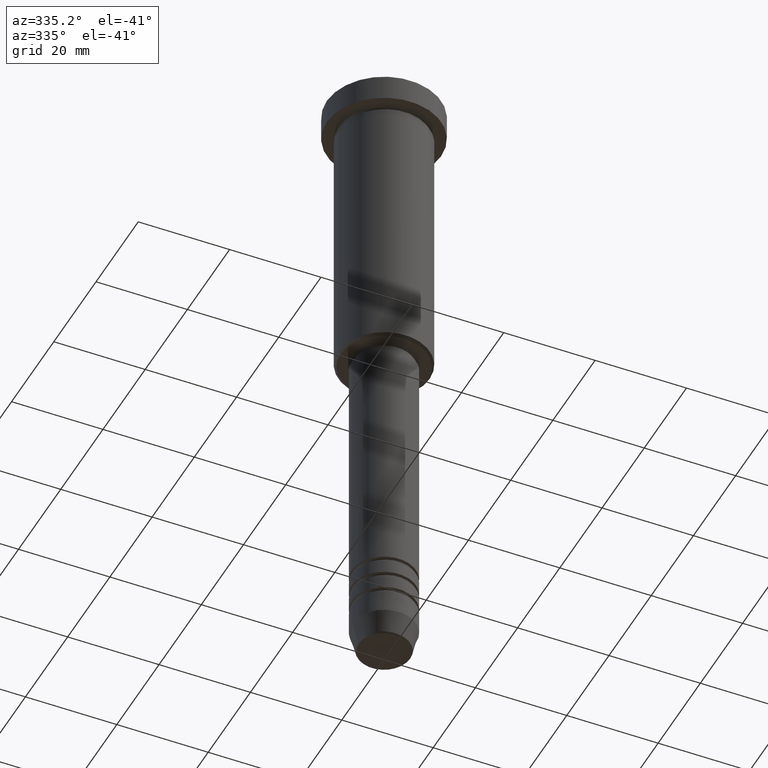
[diagram: clean part render]
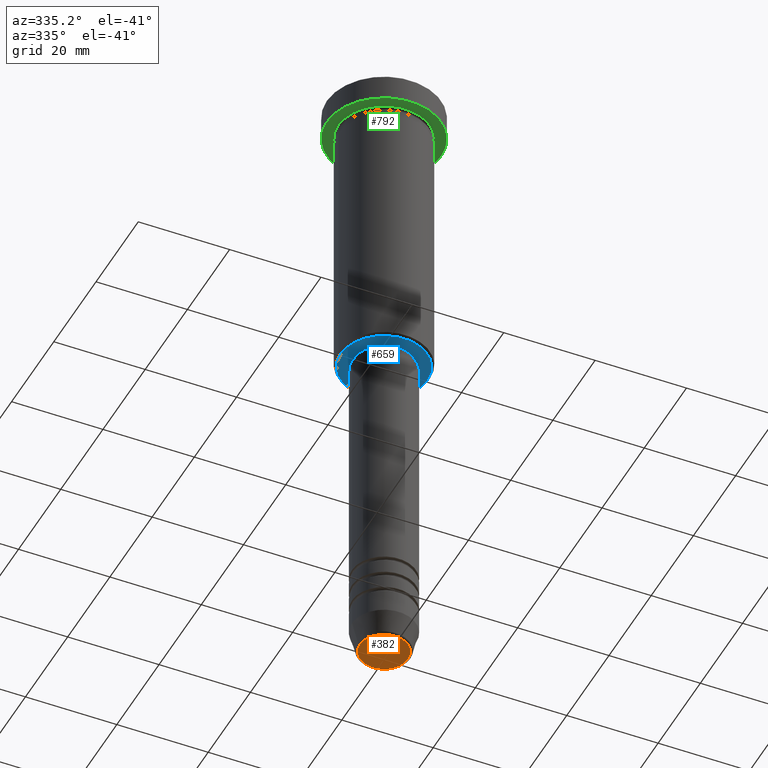
[diagram: same view with three faces highlighted in distinct colors, each labeled with its STEP entity id]
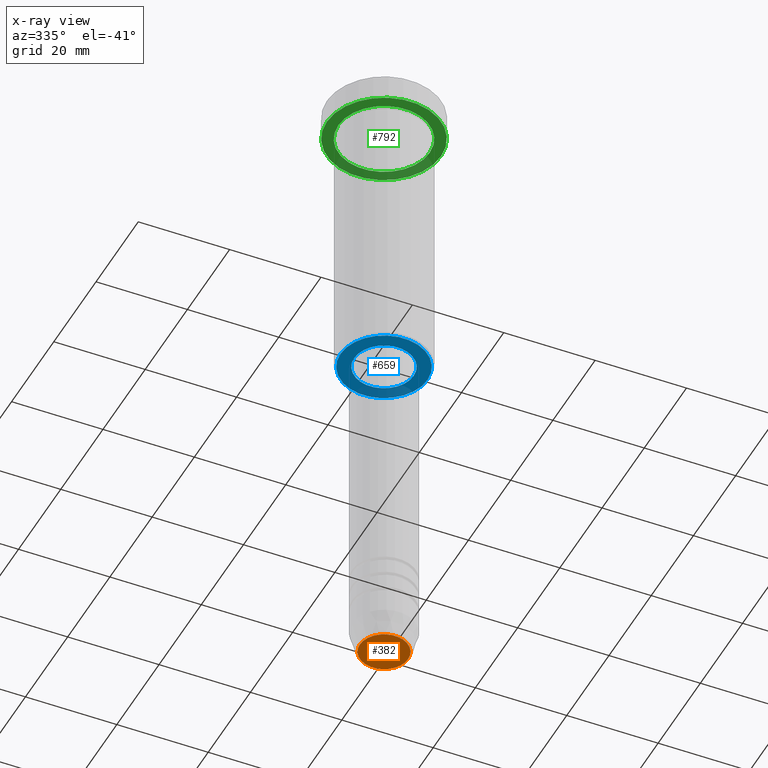
[diagram: x-ray of the same camera — body ghosted, the three highlighted faces saturated]
A machine part, auxiliary view with three faces highlighted in distinct colors.
The next image is the same camera in x-ray (body ghosted, the three faces saturated) — at least one of them is partly hidden behind the body in this view.
Their STEP definitions:

[orange] entity #382 — the highlighted planar face has unit normal (0, -0, 1).
#26 = CARTESIAN_POINT ( 'NONE',  ( 0.000000000000000000, 0.000000000000000000, -141.0000000000000000 ) ) ;
#117 = ORIENTED_EDGE ( 'NONE', *, *, #283, .T. ) ;
#178 = EDGE_CURVE ( 'NONE', #1104, #1133, #653, .T. ) ;
#229 = CARTESIAN_POINT ( 'NONE',  ( 0.000000000000000000, 0.000000000000000000, -141.0000000000000000 ) ) ;
#275 = CARTESIAN_POINT ( 'NONE',  ( 0.000000000000000000, 0.000000000000000000, -141.0000000000000000 ) ) ;
#283 = EDGE_CURVE ( 'NONE', #1133, #1104, #1097, .T. ) ;
#305 = FACE_OUTER_BOUND ( 'NONE', #907, .T. ) ;
#382 = ADVANCED_FACE ( 'NONE', ( #305 ), #947, .F. ) ;
#415 = CARTESIAN_POINT ( 'NONE',  ( -5.276590543854905668, 6.757689212787771832E-16, -141.0000000000000000 ) ) ;
#423 = AXIS2_PLACEMENT_3D ( 'NONE', #26, #490, #674 ) ;
#490 = DIRECTION ( 'NONE',  ( 0.000000000000000000, 0.000000000000000000, -1.000000000000000000 ) ) ;
#653 = CIRCLE ( 'NONE', #755, 5.276590543854905668 ) ;
#674 = DIRECTION ( 'NONE',  ( 1.000000000000000000, 0.000000000000000000, 0.000000000000000000 ) ) ;
#677 = ORIENTED_EDGE ( 'NONE', *, *, #178, .T. ) ;
#681 = DIRECTION ( 'NONE',  ( 1.000000000000000000, 0.000000000000000000, 0.000000000000000000 ) ) ;
#755 = AXIS2_PLACEMENT_3D ( 'NONE', #275, #1179, #1083 ) ;
#907 = EDGE_LOOP ( 'NONE', ( #677, #117 ) ) ;
#947 = PLANE ( 'NONE',  #1029 ) ;
#954 = DIRECTION ( 'NONE',  ( 0.000000000000000000, -0.000000000000000000, 1.000000000000000000 ) ) ;
#969 = CARTESIAN_POINT ( 'NONE',  ( 5.276590543854905668, 0.000000000000000000, -141.0000000000000000 ) ) ;
#1029 = AXIS2_PLACEMENT_3D ( 'NONE', #229, #954, #681 ) ;
#1083 = DIRECTION ( 'NONE',  ( 1.000000000000000000, 0.000000000000000000, 0.000000000000000000 ) ) ;
#1097 = CIRCLE ( 'NONE', #423, 5.276590543854905668 ) ;
#1104 = VERTEX_POINT ( 'NONE', #969 ) ;
#1133 = VERTEX_POINT ( 'NONE', #415 ) ;
#1179 = DIRECTION ( 'NONE',  ( 0.000000000000000000, 0.000000000000000000, -1.000000000000000000 ) ) ;

[blue] entity #659 — the highlighted planar face has unit normal (0, 0, -1).
#1 = CARTESIAN_POINT ( 'NONE',  ( 0.000000000000000000, 0.000000000000000000, -66.00000000000000000 ) ) ;
#31 = DIRECTION ( 'NONE',  ( 1.000000000000000000, 0.000000000000000000, 0.000000000000000000 ) ) ;
#89 = CARTESIAN_POINT ( 'NONE',  ( 0.000000000000000000, 0.000000000000000000, -66.00000000000000000 ) ) ;
#93 = DIRECTION ( 'NONE',  ( -1.000000000000000000, 0.000000000000000000, 0.000000000000000000 ) ) ;
#100 = DIRECTION ( 'NONE',  ( -1.000000000000000000, 0.000000000000000000, 0.000000000000000000 ) ) ;
#108 = CIRCLE ( 'NONE', #361, 6.500000000000000000 ) ;
#112 = VERTEX_POINT ( 'NONE', #647 ) ;
#131 = CIRCLE ( 'NONE', #246, 6.500000000000000000 ) ;
#133 = EDGE_CURVE ( 'NONE', #525, #1045, #512, .T. ) ;
#188 = AXIS2_PLACEMENT_3D ( 'NONE', #744, #537, #285 ) ;
#246 = AXIS2_PLACEMENT_3D ( 'NONE', #759, #776, #31 ) ;
#285 = DIRECTION ( 'NONE',  ( -1.000000000000000000, 0.000000000000000000, -0.000000000000000000 ) ) ;
#303 = EDGE_LOOP ( 'NONE', ( #937, #1020 ) ) ;
#358 = CARTESIAN_POINT ( 'NONE',  ( 0.000000000000000000, 0.000000000000000000, -66.00000000000000000 ) ) ;
#361 = AXIS2_PLACEMENT_3D ( 'NONE', #358, #923, #461 ) ;
#367 = DIRECTION ( 'NONE',  ( 0.000000000000000000, 0.000000000000000000, -1.000000000000000000 ) ) ;
#402 = AXIS2_PLACEMENT_3D ( 'NONE', #89, #475, #93 ) ;
#461 = DIRECTION ( 'NONE',  ( 1.000000000000000000, 0.000000000000000000, 0.000000000000000000 ) ) ;
#475 = DIRECTION ( 'NONE',  ( 0.000000000000000000, 0.000000000000000000, -1.000000000000000000 ) ) ;
#480 = CARTESIAN_POINT ( 'NONE',  ( 6.500000000000000000, 0.000000000000000000, -66.00000000000000000 ) ) ;
#512 = CIRCLE ( 'NONE', #402, 9.499999999999994671 ) ;
#518 = ORIENTED_EDGE ( 'NONE', *, *, #775, .T. ) ;
#525 = VERTEX_POINT ( 'NONE', #999 ) ;
#537 = DIRECTION ( 'NONE',  ( 0.000000000000000000, 0.000000000000000000, -1.000000000000000000 ) ) ;
#635 = EDGE_CURVE ( 'NONE', #112, #746, #108, .T. ) ;
#647 = CARTESIAN_POINT ( 'NONE',  ( -6.500000000000000000, 7.960204194457795477E-16, -66.00000000000000000 ) ) ;
#649 = FACE_OUTER_BOUND ( 'NONE', #303, .T. ) ;
#659 = ADVANCED_FACE ( 'NONE', ( #649, #1096 ), #845, .T. ) ;
#687 = EDGE_CURVE ( 'NONE', #1045, #525, #1052, .T. ) ;
#744 = CARTESIAN_POINT ( 'NONE',  ( 0.000000000000000000, 10.00000000000000000, -66.00000000000000000 ) ) ;
#746 = VERTEX_POINT ( 'NONE', #480 ) ;
#759 = CARTESIAN_POINT ( 'NONE',  ( 0.000000000000000000, 0.000000000000000000, -66.00000000000000000 ) ) ;
#775 = EDGE_CURVE ( 'NONE', #746, #112, #131, .T. ) ;
#776 = DIRECTION ( 'NONE',  ( -0.000000000000000000, -0.000000000000000000, 1.000000000000000000 ) ) ;
#777 = ORIENTED_EDGE ( 'NONE', *, *, #635, .T. ) ;
#845 = PLANE ( 'NONE',  #188 ) ;
#904 = EDGE_LOOP ( 'NONE', ( #518, #777 ) ) ;
#913 = CARTESIAN_POINT ( 'NONE',  ( 9.499999999999994671, 0.000000000000000000, -66.00000000000000000 ) ) ;
#923 = DIRECTION ( 'NONE',  ( -0.000000000000000000, -0.000000000000000000, 1.000000000000000000 ) ) ;
#937 = ORIENTED_EDGE ( 'NONE', *, *, #687, .T. ) ;
#999 = CARTESIAN_POINT ( 'NONE',  ( -9.499999999999994671, 1.194030629168669075E-15, -66.00000000000000000 ) ) ;
#1020 = ORIENTED_EDGE ( 'NONE', *, *, #133, .T. ) ;
#1045 = VERTEX_POINT ( 'NONE', #913 ) ;
#1052 = CIRCLE ( 'NONE', #1122, 9.499999999999994671 ) ;
#1096 = FACE_BOUND ( 'NONE', #904, .T. ) ;
#1122 = AXIS2_PLACEMENT_3D ( 'NONE', #1, #367, #100 ) ;

[green] entity #792 — the highlighted planar face has unit normal (0, 0, -1).
#11 = AXIS2_PLACEMENT_3D ( 'NONE', #598, #966, #139 ) ;
#59 = CIRCLE ( 'NONE', #607, 12.50000000000000000 ) ;
#62 = DIRECTION ( 'NONE',  ( -1.000000000000000000, 0.000000000000000000, 0.000000000000000000 ) ) ;
#72 = DIRECTION ( 'NONE',  ( -0.000000000000000000, -0.000000000000000000, 1.000000000000000000 ) ) ;
#80 = AXIS2_PLACEMENT_3D ( 'NONE', #209, #1027, #958 ) ;
#110 = EDGE_LOOP ( 'NONE', ( #719, #1138 ) ) ;
#139 = DIRECTION ( 'NONE',  ( -1.000000000000000000, 0.000000000000000000, 0.000000000000000000 ) ) ;
#195 = ORIENTED_EDGE ( 'NONE', *, *, #355, .F. ) ;
#197 = VERTEX_POINT ( 'NONE', #637 ) ;
#209 = CARTESIAN_POINT ( 'NONE',  ( 0.000000000000000000, 12.50000000000000000, -5.999999999999996447 ) ) ;
#218 = DIRECTION ( 'NONE',  ( 1.000000000000000000, 0.000000000000000000, 0.000000000000000000 ) ) ;
#291 = FACE_OUTER_BOUND ( 'NONE', #1178, .T. ) ;
#310 = DIRECTION ( 'NONE',  ( -0.000000000000000000, -0.000000000000000000, 1.000000000000000000 ) ) ;
#318 = CIRCLE ( 'NONE', #1157, 12.50000000000000000 ) ;
#344 = VERTEX_POINT ( 'NONE', #773 ) ;
#355 = EDGE_CURVE ( 'NONE', #377, #650, #59, .T. ) ;
#377 = VERTEX_POINT ( 'NONE', #574 ) ;
#400 = CIRCLE ( 'NONE', #509, 10.00000000000000000 ) ;
#429 = EDGE_CURVE ( 'NONE', #344, #197, #939, .T. ) ;
#509 = AXIS2_PLACEMENT_3D ( 'NONE', #936, #72, #62 ) ;
#529 = CARTESIAN_POINT ( 'NONE',  ( 0.000000000000000000, 0.000000000000000000, -5.999999999999996447 ) ) ;
#552 = EDGE_CURVE ( 'NONE', #650, #377, #318, .T. ) ;
#574 = CARTESIAN_POINT ( 'NONE',  ( -12.50000000000000000, 1.530808498934191521E-15, -5.999999999999996447 ) ) ;
#598 = CARTESIAN_POINT ( 'NONE',  ( 0.000000000000000000, 0.000000000000000000, -5.999999999999996447 ) ) ;
#607 = AXIS2_PLACEMENT_3D ( 'NONE', #875, #310, #218 ) ;
#637 = CARTESIAN_POINT ( 'NONE',  ( -10.00000000000000000, 0.000000000000000000, -5.999999999999996447 ) ) ;
#644 = CARTESIAN_POINT ( 'NONE',  ( 12.50000000000000000, 0.000000000000000000, -5.999999999999996447 ) ) ;
#650 = VERTEX_POINT ( 'NONE', #644 ) ;
#701 = ORIENTED_EDGE ( 'NONE', *, *, #552, .F. ) ;
#719 = ORIENTED_EDGE ( 'NONE', *, *, #895, .T. ) ;
#773 = CARTESIAN_POINT ( 'NONE',  ( 10.00000000000000000, 1.224646799147353256E-15, -5.999999999999996447 ) ) ;
#792 = ADVANCED_FACE ( 'NONE', ( #1042, #291 ), #1048, .T. ) ;
#875 = CARTESIAN_POINT ( 'NONE',  ( 0.000000000000000000, 0.000000000000000000, -5.999999999999996447 ) ) ;
#881 = DIRECTION ( 'NONE',  ( 1.000000000000000000, 0.000000000000000000, 0.000000000000000000 ) ) ;
#895 = EDGE_CURVE ( 'NONE', #197, #344, #400, .T. ) ;
#909 = DIRECTION ( 'NONE',  ( -0.000000000000000000, -0.000000000000000000, 1.000000000000000000 ) ) ;
#936 = CARTESIAN_POINT ( 'NONE',  ( 0.000000000000000000, 0.000000000000000000, -5.999999999999996447 ) ) ;
#939 = CIRCLE ( 'NONE', #11, 10.00000000000000000 ) ;
#958 = DIRECTION ( 'NONE',  ( -1.000000000000000000, 0.000000000000000000, -0.000000000000000000 ) ) ;
#966 = DIRECTION ( 'NONE',  ( -0.000000000000000000, -0.000000000000000000, 1.000000000000000000 ) ) ;
#1027 = DIRECTION ( 'NONE',  ( 0.000000000000000000, 0.000000000000000000, -1.000000000000000000 ) ) ;
#1042 = FACE_BOUND ( 'NONE', #110, .T. ) ;
#1048 = PLANE ( 'NONE',  #80 ) ;
#1138 = ORIENTED_EDGE ( 'NONE', *, *, #429, .T. ) ;
#1157 = AXIS2_PLACEMENT_3D ( 'NONE', #529, #909, #881 ) ;
#1178 = EDGE_LOOP ( 'NONE', ( #701, #195 ) ) ;